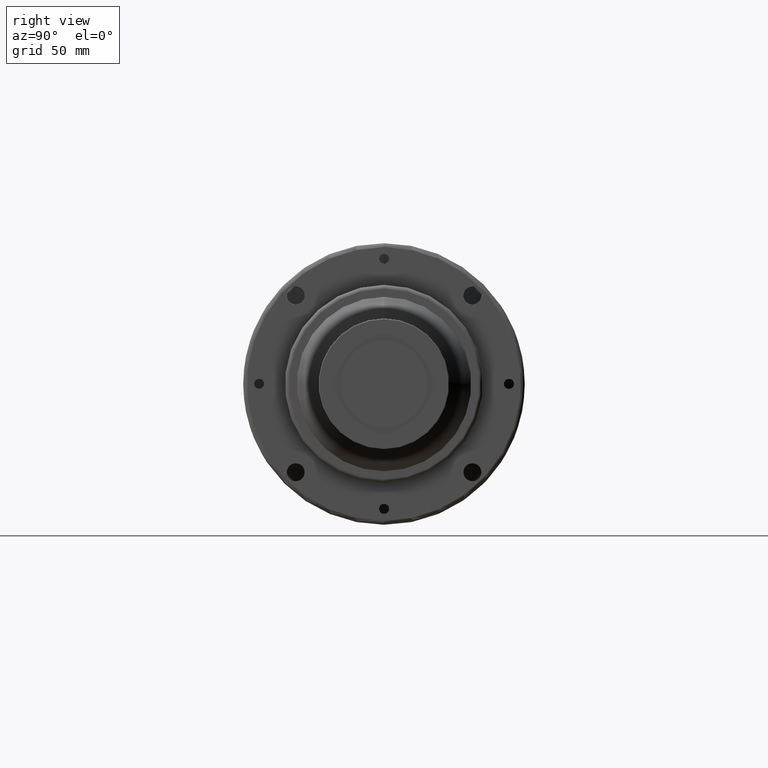
[diagram: clean part render]
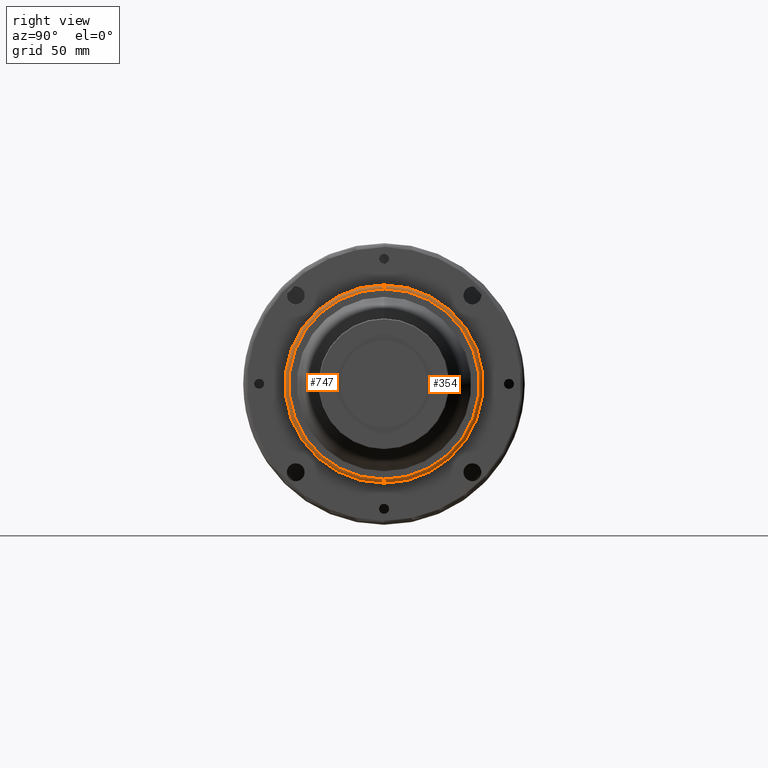
[diagram: same view with one multi-face feature highlighted, each face labeled with its STEP entity id]
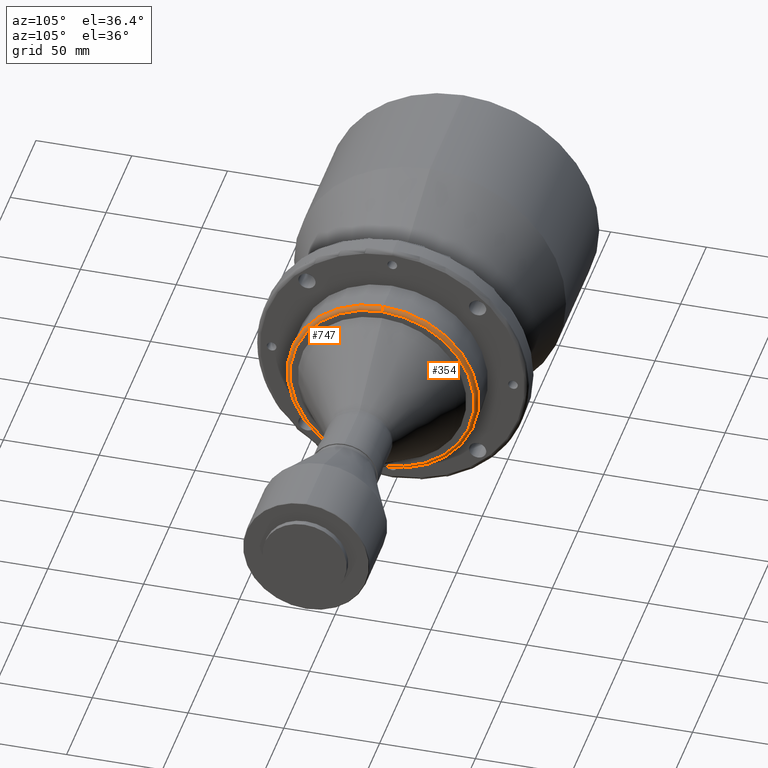
[diagram: same view with one multi-face feature highlighted, each face labeled with its STEP entity id]
A machine part, right view. The highlighted faces form ONE feature: a constant-radius fillet chain: 2 tangent blend faces with common blend radius 2 mm. The faces share edges in the B-rep.
A second angle (auxiliary view) of the same feature is appended — it is thin or edge-on in the first view.
Their STEP definitions:
[1] entity #354 (Torus):
#19 = ORIENTED_EDGE ( 'NONE', *, *, #802, .T. ) ;
#30 = FACE_OUTER_BOUND ( 'NONE', #131, .T. ) ;
#67 = ORIENTED_EDGE ( 'NONE', *, *, #1674, .F. ) ;
#131 = EDGE_LOOP ( 'NONE', ( #1455, #19, #908, #67 ) ) ;
#189 = DIRECTION ( 'NONE',  ( 0.0000000000000000000, 0.0000000000000000000, 1.000000000000000000 ) ) ;
#213 = CIRCLE ( 'NONE', #1322, 47.99999999999998600 ) ;
#309 = DIRECTION ( 'NONE',  ( 0.0000000000000000000, 0.0000000000000000000, 1.000000000000000000 ) ) ;
#354 = ADVANCED_FACE ( 'NONE', ( #30 ), #1407, .T. ) ;
#397 = EDGE_CURVE ( 'NONE', #1093, #777, #1040, .T. ) ;
#440 = CARTESIAN_POINT ( 'NONE',  ( 156.5000000000000000, 0.0000000000000000000, 50.00000000000000000 ) ) ;
#528 = CARTESIAN_POINT ( 'NONE',  ( 156.5000000000000000, 6.123233995736766100E-015, -50.00000000000000000 ) ) ;
#563 = EDGE_CURVE ( 'NONE', #940, #1470, #213, .T. ) ;
#599 = DIRECTION ( 'NONE',  ( -1.000000000000000000, -0.0000000000000000000, -0.0000000000000000000 ) ) ;
#719 = DIRECTION ( 'NONE',  ( 0.0000000000000000000, -1.000000000000000000, 0.0000000000000000000 ) ) ;
#735 = CARTESIAN_POINT ( 'NONE',  ( 156.5000000000000000, 0.0000000000000000000, 0.0000000000000000000 ) ) ;
#749 = AXIS2_PLACEMENT_3D ( 'NONE', #1163, #719, #1575 ) ;
#777 = VERTEX_POINT ( 'NONE', #528 ) ;
#802 = EDGE_CURVE ( 'NONE', #1470, #777, #1267, .T. ) ;
#891 = CARTESIAN_POINT ( 'NONE',  ( 158.5000000000000000, 0.0000000000000000000, 0.0000000000000000000 ) ) ;
#908 = ORIENTED_EDGE ( 'NONE', *, *, #397, .F. ) ;
#940 = VERTEX_POINT ( 'NONE', #1304 ) ;
#1040 = CIRCLE ( 'NONE', #1648, 50.00000000000000000 ) ;
#1046 = DIRECTION ( 'NONE',  ( -1.000000000000000000, -0.0000000000000000000, -0.0000000000000000000 ) ) ;
#1093 = VERTEX_POINT ( 'NONE', #440 ) ;
#1163 = CARTESIAN_POINT ( 'NONE',  ( 156.5000000000000000, 0.0000000000000000000, 48.00000000000000000 ) ) ;
#1267 = CIRCLE ( 'NONE', #1799, 2.000000000000001800 ) ;
#1304 = CARTESIAN_POINT ( 'NONE',  ( 158.5000000000000000, 0.0000000000000000000, 47.99999999999998600 ) ) ;
#1322 = AXIS2_PLACEMENT_3D ( 'NONE', #891, #1046, #189 ) ;
#1381 = CIRCLE ( 'NONE', #749, 2.000000000000001800 ) ;
#1407 = TOROIDAL_SURFACE ( 'NONE', #1713, 48.00000000000000000, 2.000000000000001800 ) ;
#1455 = ORIENTED_EDGE ( 'NONE', *, *, #563, .T. ) ;
#1458 = CARTESIAN_POINT ( 'NONE',  ( 156.5000000000000000, 0.0000000000000000000, 0.0000000000000000000 ) ) ;
#1470 = VERTEX_POINT ( 'NONE', #1675 ) ;
#1478 = DIRECTION ( 'NONE',  ( 0.0000000000000000000, 0.0000000000000000000, 1.000000000000000000 ) ) ;
#1557 = DIRECTION ( 'NONE',  ( 0.0000000000000000000, -1.224646799147353500E-016, 1.000000000000000000 ) ) ;
#1575 = DIRECTION ( 'NONE',  ( 0.0000000000000000000, 0.0000000000000000000, -1.000000000000000000 ) ) ;
#1598 = DIRECTION ( 'NONE',  ( -1.000000000000000000, -0.0000000000000000000, -0.0000000000000000000 ) ) ;
#1648 = AXIS2_PLACEMENT_3D ( 'NONE', #735, #599, #1478 ) ;
#1674 = EDGE_CURVE ( 'NONE', #940, #1093, #1381, .T. ) ;
#1675 = CARTESIAN_POINT ( 'NONE',  ( 158.5000000000000000, 6.000769315822030100E-015, -47.99999999999998600 ) ) ;
#1713 = AXIS2_PLACEMENT_3D ( 'NONE', #1458, #1598, #309 ) ;
#1799 = AXIS2_PLACEMENT_3D ( 'NONE', #1859, #1849, #1557 ) ;
#1849 = DIRECTION ( 'NONE',  ( -0.0000000000000000000, 1.000000000000000000, 1.224646799147353200E-016 ) ) ;
#1859 = CARTESIAN_POINT ( 'NONE',  ( 156.5000000000000000, 5.878304635907295800E-015, -48.00000000000000000 ) ) ;
[2] entity #747 (Torus):
#152 = ORIENTED_EDGE ( 'NONE', *, *, #1552, .F. ) ;
#440 = CARTESIAN_POINT ( 'NONE',  ( 156.5000000000000000, 0.0000000000000000000, 50.00000000000000000 ) ) ;
#481 = DIRECTION ( 'NONE',  ( 0.0000000000000000000, 0.0000000000000000000, 1.000000000000000000 ) ) ;
#528 = CARTESIAN_POINT ( 'NONE',  ( 156.5000000000000000, 6.123233995736766100E-015, -50.00000000000000000 ) ) ;
#532 = DIRECTION ( 'NONE',  ( -1.000000000000000000, -0.0000000000000000000, -0.0000000000000000000 ) ) ;
#560 = AXIS2_PLACEMENT_3D ( 'NONE', #1212, #1351, #481 ) ;
#625 = TOROIDAL_SURFACE ( 'NONE', #1519, 48.00000000000000000, 2.000000000000001800 ) ;
#696 = CIRCLE ( 'NONE', #560, 47.99999999999998600 ) ;
#719 = DIRECTION ( 'NONE',  ( 0.0000000000000000000, -1.000000000000000000, 0.0000000000000000000 ) ) ;
#747 = ADVANCED_FACE ( 'NONE', ( #1600 ), #625, .T. ) ;
#749 = AXIS2_PLACEMENT_3D ( 'NONE', #1163, #719, #1575 ) ;
#777 = VERTEX_POINT ( 'NONE', #528 ) ;
#795 = ORIENTED_EDGE ( 'NONE', *, *, #1674, .T. ) ;
#802 = EDGE_CURVE ( 'NONE', #1470, #777, #1267, .T. ) ;
#804 = CIRCLE ( 'NONE', #1726, 50.00000000000000000 ) ;
#823 = DIRECTION ( 'NONE',  ( 0.0000000000000000000, 0.0000000000000000000, 1.000000000000000000 ) ) ;
#933 = EDGE_LOOP ( 'NONE', ( #1560, #1265, #795, #152 ) ) ;
#940 = VERTEX_POINT ( 'NONE', #1304 ) ;
#1093 = VERTEX_POINT ( 'NONE', #440 ) ;
#1117 = CARTESIAN_POINT ( 'NONE',  ( 156.5000000000000000, 0.0000000000000000000, 0.0000000000000000000 ) ) ;
#1124 = CARTESIAN_POINT ( 'NONE',  ( 156.5000000000000000, 0.0000000000000000000, 0.0000000000000000000 ) ) ;
#1152 = DIRECTION ( 'NONE',  ( 0.0000000000000000000, 0.0000000000000000000, 1.000000000000000000 ) ) ;
#1163 = CARTESIAN_POINT ( 'NONE',  ( 156.5000000000000000, 0.0000000000000000000, 48.00000000000000000 ) ) ;
#1212 = CARTESIAN_POINT ( 'NONE',  ( 158.5000000000000000, 0.0000000000000000000, 0.0000000000000000000 ) ) ;
#1226 = EDGE_CURVE ( 'NONE', #1470, #940, #696, .T. ) ;
#1265 = ORIENTED_EDGE ( 'NONE', *, *, #1226, .T. ) ;
#1267 = CIRCLE ( 'NONE', #1799, 2.000000000000001800 ) ;
#1304 = CARTESIAN_POINT ( 'NONE',  ( 158.5000000000000000, 0.0000000000000000000, 47.99999999999998600 ) ) ;
#1351 = DIRECTION ( 'NONE',  ( -1.000000000000000000, -0.0000000000000000000, -0.0000000000000000000 ) ) ;
#1381 = CIRCLE ( 'NONE', #749, 2.000000000000001800 ) ;
#1470 = VERTEX_POINT ( 'NONE', #1675 ) ;
#1519 = AXIS2_PLACEMENT_3D ( 'NONE', #1117, #532, #823 ) ;
#1552 = EDGE_CURVE ( 'NONE', #777, #1093, #804, .T. ) ;
#1557 = DIRECTION ( 'NONE',  ( 0.0000000000000000000, -1.224646799147353500E-016, 1.000000000000000000 ) ) ;
#1560 = ORIENTED_EDGE ( 'NONE', *, *, #802, .F. ) ;
#1575 = DIRECTION ( 'NONE',  ( 0.0000000000000000000, 0.0000000000000000000, -1.000000000000000000 ) ) ;
#1600 = FACE_OUTER_BOUND ( 'NONE', #933, .T. ) ;
#1674 = EDGE_CURVE ( 'NONE', #940, #1093, #1381, .T. ) ;
#1675 = CARTESIAN_POINT ( 'NONE',  ( 158.5000000000000000, 6.000769315822030100E-015, -47.99999999999998600 ) ) ;
#1726 = AXIS2_PLACEMENT_3D ( 'NONE', #1124, #1846, #1152 ) ;
#1799 = AXIS2_PLACEMENT_3D ( 'NONE', #1859, #1849, #1557 ) ;
#1846 = DIRECTION ( 'NONE',  ( -1.000000000000000000, -0.0000000000000000000, -0.0000000000000000000 ) ) ;
#1849 = DIRECTION ( 'NONE',  ( -0.0000000000000000000, 1.000000000000000000, 1.224646799147353200E-016 ) ) ;
#1859 = CARTESIAN_POINT ( 'NONE',  ( 156.5000000000000000, 5.878304635907295800E-015, -48.00000000000000000 ) ) ;